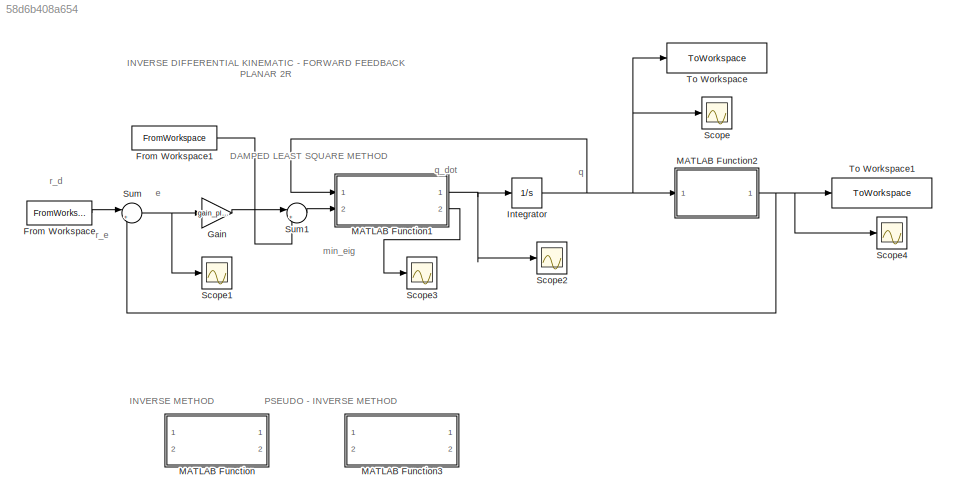
MODEL slx_58d6b408a654
KIND model
CONFIG AbsTol = auto
CONFIG EnableMultiTasking = off
CONFIG FixedStep = auto
CONFIG MaxStep = auto
CONFIG MinStep = auto
CONFIG RelTol = 1e-3
CONFIG SampleTimeConstraint = Unconstrained
CONFIG Solver = VariableStepAuto
CONFIG SolverName = VariableStepAuto
CONFIG StartTime = 0.0
CONFIG StopTime = 2.0
BLOCK [FromWorkspace] From Workspace
  SampleTime = time_step
  VariableName = r_d_planar_2R
  ZeroCross = on
BLOCK [FromWorkspace] From Workspace1
  SampleTime = time_step
  VariableName = v_d_planar_2R
  ZeroCross = on
BLOCK [Gain] Gain
  Gain = gain_planar_2R
  OutDataTypeStr = Inherit: Inherit via internal rule
  ParamDataTypeStr = Inherit: Inherit via internal rule
  SaturateOnIntegerOverflow = off
BLOCK [Integrator] Integrator
  InitialCondition = q0_planar_2R
  Ports = [1, 1]
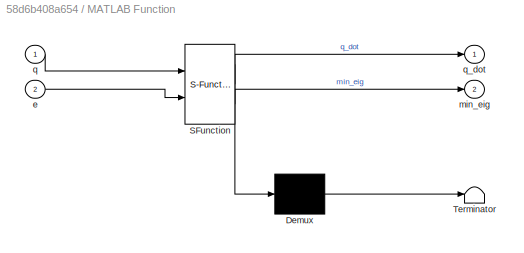
BLOCK [SubSystem] MATLAB Function
  Commented = on
  ErrorFcn = Stateflow.Translate.translate
  PermitHierarchicalResolution = ExplicitOnly
  Ports = [2, 2]
  RequestExecContextInheritance = off
  SFBlockType = MATLAB Function
  TreatAsAtomicUnit = on
BLOCK [Demux] MATLAB Function/ Demux 
  Outputs = 1
  Ports = [1, 1]
BLOCK [S-Function] MATLAB Function/ SFunction 
  EnableBusSupport = on
  FunctionName = sf_sfun
  PortCounts = [2 3]
  Ports = [2, 3]
  SFcnIsStateOwnerBlock = off
  SFunctionDeploymentMode = off
  Tag = Stateflow S-Function 2
BLOCK [Terminator] MATLAB Function/ Terminator 
BLOCK [Inport] MATLAB Function/e
  IconDisplay = Port number
  Port = 2
BLOCK [Outport] MATLAB Function/min_eig
  IconDisplay = Port number
  Port = 2
BLOCK [Inport] MATLAB Function/q
  IconDisplay = Port number
BLOCK [Outport] MATLAB Function/q_dot
  IconDisplay = Port number
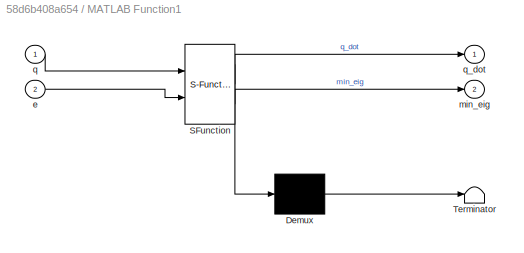
BLOCK [SubSystem] MATLAB Function1
  ErrorFcn = Stateflow.Translate.translate
  PermitHierarchicalResolution = ExplicitOnly
  Ports = [2, 2]
  RequestExecContextInheritance = off
  SFBlockType = MATLAB Function
  TreatAsAtomicUnit = on
BLOCK [Demux] MATLAB Function1/ Demux 
  Outputs = 1
  Ports = [1, 1]
BLOCK [S-Function] MATLAB Function1/ SFunction 
  EnableBusSupport = on
  FunctionName = sf_sfun
  PortCounts = [2 3]
  Ports = [2, 3]
  SFcnIsStateOwnerBlock = off
  SFunctionDeploymentMode = off
  Tag = Stateflow S-Function 1
BLOCK [Terminator] MATLAB Function1/ Terminator 
BLOCK [Inport] MATLAB Function1/e
  IconDisplay = Port number
  Port = 2
BLOCK [Outport] MATLAB Function1/min_eig
  IconDisplay = Port number
  Port = 2
BLOCK [Inport] MATLAB Function1/q
  IconDisplay = Port number
BLOCK [Outport] MATLAB Function1/q_dot
  IconDisplay = Port number
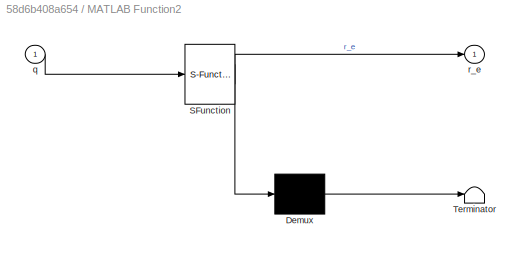
BLOCK [SubSystem] MATLAB Function2
  ErrorFcn = Stateflow.Translate.translate
  PermitHierarchicalResolution = ExplicitOnly
  Ports = [1, 1]
  RequestExecContextInheritance = off
  SFBlockType = MATLAB Function
  TreatAsAtomicUnit = on
BLOCK [Demux] MATLAB Function2/ Demux 
  Outputs = 1
  Ports = [1, 1]
BLOCK [S-Function] MATLAB Function2/ SFunction 
  EnableBusSupport = on
  FunctionName = sf_sfun
  PortCounts = [1 2]
  Ports = [1, 2]
  SFcnIsStateOwnerBlock = off
  SFunctionDeploymentMode = off
  Tag = Stateflow S-Function 3
BLOCK [Terminator] MATLAB Function2/ Terminator 
BLOCK [Inport] MATLAB Function2/q
  IconDisplay = Port number
BLOCK [Outport] MATLAB Function2/r_e
  IconDisplay = Port number
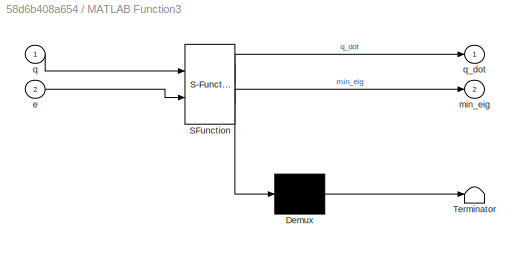
BLOCK [SubSystem] MATLAB Function3
  Commented = on
  ErrorFcn = Stateflow.Translate.translate
  PermitHierarchicalResolution = ExplicitOnly
  Ports = [2, 2]
  RequestExecContextInheritance = off
  SFBlockType = MATLAB Function
  TreatAsAtomicUnit = on
BLOCK [Demux] MATLAB Function3/ Demux 
  Outputs = 1
  Ports = [1, 1]
BLOCK [S-Function] MATLAB Function3/ SFunction 
  EnableBusSupport = on
  FunctionName = sf_sfun
  PortCounts = [2 3]
  Ports = [2, 3]
  SFcnIsStateOwnerBlock = off
  SFunctionDeploymentMode = off
  Tag = Stateflow S-Function 4
BLOCK [Terminator] MATLAB Function3/ Terminator 
BLOCK [Inport] MATLAB Function3/e
  IconDisplay = Port number
  Port = 2
BLOCK [Outport] MATLAB Function3/min_eig
  IconDisplay = Port number
  Port = 2
BLOCK [Inport] MATLAB Function3/q
  IconDisplay = Port number
BLOCK [Outport] MATLAB Function3/q_dot
  IconDisplay = Port number
BLOCK [Scope] Scope
  Floating = off
  NumInputPorts = 1
  Ports = [1]
  ScopeSpecificationString = Simulink.scopes.TimeScopeBlockCfg('CurrentConfiguration', extmgr.ConfigurationSet(extmgr.Configuration('Core','General UI',true),extmgr.Configuration('Core','Source UI',true),extmgr.Configuration('Sources','WiredSimulink',true),extmgr.Configuration('Visuals','Time Domain',true,'SerializedDisplays',{struct('MinYLimReal','-3.8612','MaxYLimReal','6.66838','YLabelReal','','MinYLimMag','0.00000','MaxYL...<+1345ch>
BLOCK [Scope] Scope1
  Floating = off
  NumInputPorts = 1
  Ports = [1]
  ScopeSpecificationString = Simulink.scopes.TimeScopeBlockCfg('CurrentConfiguration', extmgr.ConfigurationSet(extmgr.Configuration('Core','General UI',true),extmgr.Configuration('Core','Source UI',true),extmgr.Configuration('Sources','WiredSimulink',true,'DataLoggingVariableName','ScopeData1'),extmgr.Configuration('Visuals','Time Domain',true,'SerializedDisplays',{struct('MinYLimReal','-0.01503','MaxYLimReal','0.0071','YLabe...<+1370ch>
BLOCK [Scope] Scope2
  Floating = off
  NumInputPorts = 1
  Ports = [1]
  ScopeSpecificationString = Simulink.scopes.TimeScopeBlockCfg('CurrentConfiguration', extmgr.ConfigurationSet(extmgr.Configuration('Core','General UI',true),extmgr.Configuration('Core','Source UI',true),extmgr.Configuration('Sources','WiredSimulink',true,'DataLoggingVariableName','ScopeData2'),extmgr.Configuration('Visuals','Time Domain',true,'SerializedDisplays',{struct('MinYLimReal','-16.34043','MaxYLimReal','4.92353','YLa...<+1414ch>
BLOCK [Scope] Scope3
  Floating = off
  NumInputPorts = 1
  Ports = [1]
  ScopeSpecificationString = Simulink.scopes.TimeScopeBlockCfg('CurrentConfiguration', extmgr.ConfigurationSet(extmgr.Configuration('Core','General UI',true),extmgr.Configuration('Core','Source UI',true),extmgr.Configuration('Sources','WiredSimulink',true,'DataLoggingVariableName','ScopeData1'),extmgr.Configuration('Visuals','Time Domain',true,'SerializedDisplays',{struct('MinYLimReal','-0.11364','MaxYLimReal','1.12374','YLab...<+1402ch>
BLOCK [Scope] Scope4
  Floating = off
  NumInputPorts = 1
  Ports = [1]
  ScopeSpecificationString = Simulink.scopes.TimeScopeBlockCfg('CurrentConfiguration', extmgr.ConfigurationSet(extmgr.Configuration('Core','General UI',true),extmgr.Configuration('Core','Source UI',true),extmgr.Configuration('Sources','WiredSimulink',true,'DataLoggingVariableName','ScopeData1'),extmgr.Configuration('Visuals','Time Domain',true,'SerializedDisplays',{struct('MinYLimReal','-3.8612','MaxYLimReal','6.66838','YLabe...<+1384ch>
BLOCK [Sum] Sum
  IconShape = round
  InputSameDT = off
  Inputs = |+-
  OutDataTypeStr = Inherit: Inherit via internal rule
  Ports = [2, 1]
  SaturateOnIntegerOverflow = off
BLOCK [Sum] Sum1
  IconShape = round
  InputSameDT = off
  Inputs = |++
  OutDataTypeStr = Inherit: Inherit via internal rule
  Ports = [2, 1]
  SaturateOnIntegerOverflow = off
BLOCK [ToWorkspace] To Workspace
  FixptAsFi = on
  MaxDataPoints = inf
  Ports = [1]
  SampleTime = time_step
  SaveFormat = Timeseries
  VariableName = q_planar_2R
BLOCK [ToWorkspace] To Workspace1
  FixptAsFi = on
  MaxDataPoints = inf
  Ports = [1]
  SampleTime = time_step
  SaveFormat = Timeseries
  VariableName = pos_planar_2R
ANNOTATION (root): INVERSE DIFFERENTIAL KINEMATIC - FORWARD FEEDBACK PLANAR 2R
ANNOTATION (root): DAMPED LEAST SQUARE METHOD
ANNOTATION (root): INVERSE METHOD
ANNOTATION (root): PSEUDO - INVERSE METHOD
ANNOTATION (root): e
ANNOTATION (root): min_eig
ANNOTATION (root): q
ANNOTATION (root): q_dot
ANNOTATION (root): r_d
ANNOTATION (root): r_e
LINE From Workspace1:1 -> Sum1:2
LINE From Workspace:1 -> Sum:1
LINE Gain:1 -> Sum1:1
NET Integrator:1 -> MATLAB Function1:1, MATLAB Function2:1, Scope:1, To Workspace:1
NET MATLAB Function1:1 -> Integrator:1, Scope2:1
LINE MATLAB Function1:2 -> Scope3:1
NET MATLAB Function2:1 -> Scope4:1, Sum:2, To Workspace1:1
LINE Sum1:1 -> MATLAB Function1:2
NET Sum:1 -> Gain:1, Scope1:1
note: NET lines group one-source signal fan-out (src -> all destinations, sorted); 1:1 wires keep LINE
CHART MATLAB Function1 states=1 transitions=1
  STATE_LABEL 'eML_blk_kernel()'
  STATE_LABEL 'SCRIPT:\nfunction [q_dot,min_eig] = J_dls(q,e)\nJ_q = [-sin(q(1)+q(2))-sin(q(1)) -sin(q(1)+q(2));\n    cos(q(1)+q(2))+cos(q(1)) cos(q(1)+q(2))];\nmin_eig = abs(min(eig(J_q)));\nq_dot = J_q\\e;\nif min_eig < 1e-1\n    lamb = 0.1;\n    J_q = SR_ROBO.dls_jacobian(J_q,lamb);\n    min_eig = abs(min(eig(J_q)));\n    q_dot = J_q*e;\nend\nend\n\n'
CHART MATLAB Function states=1 transitions=1
  STATE_LABEL 'eML_blk_kernel()'
  STATE_LABEL 'SCRIPT:\nfunction [q_dot,min_eig] = J_r(q,e)\nJ_q = [-sin(q(1)+q(2))-sin(q(1)) -sin(q(1)+q(2));\n    cos(q(1)+q(2))+cos(q(1)) cos(q(1)+q(2))];\nmin_eig = abs(min(eig(J_q)));\nq_dot = J_q\\e;\n'
CHART MATLAB Function2 states=1 transitions=1
  STATE_LABEL 'eML_blk_kernel()'
  STATE_LABEL 'SCRIPT:\nfunction r_e = F_r(q)\n%PLANAR ROBOT (2R)\nr_e = [cos(q(1)+q(2))+cos(q(1));\n    sin(q(1)+q(2))+sin(q(1))];\n'
CHART MATLAB Function3 states=1 transitions=1
  STATE_LABEL 'eML_blk_kernel()'
  STATE_LABEL 'SCRIPT:\nfunction [q_dot,min_eig] = J_dls(q,e)\nJ_q = [-sin(q(1)+q(2))-sin(q(1)) -sin(q(1)+q(2));\n    cos(q(1)+q(2))+cos(q(1)) cos(q(1)+q(2))];\nmin_eig = abs(min(eig(J_q)));\n\nJ_psed = SR_ROBO.pseudo_inverse_jacobian(J_q);\n\nq_dot = J_psed*e;\n'
